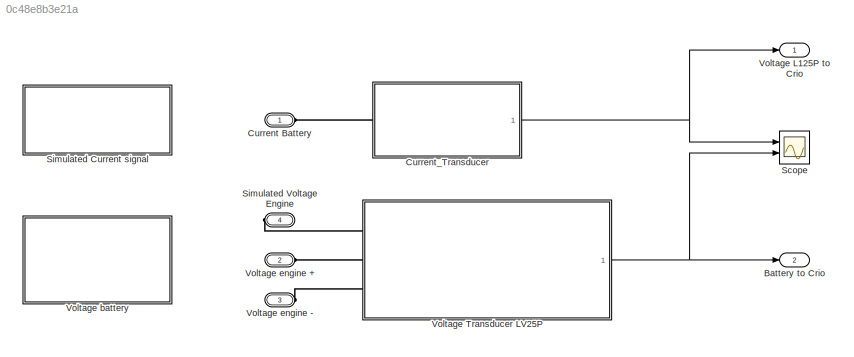
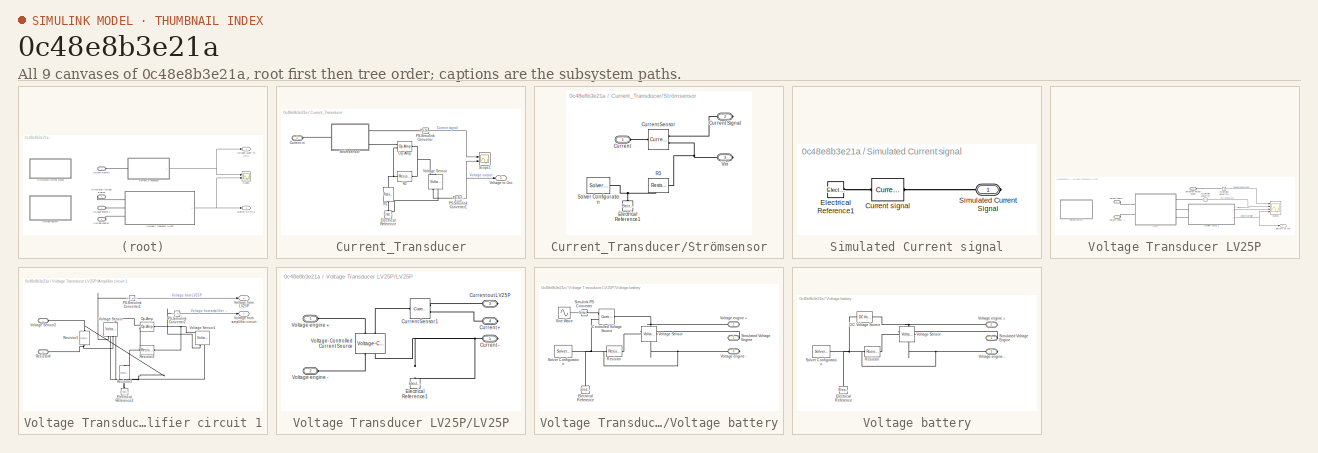
[diagram: thumbnail index - all 9 canvases of the model, root first then tree order]
MODEL slx_0c48e8b3e21a
KIND model
CONFIG AbsTol = auto
CONFIG EnableMultiTasking = off
CONFIG FixedStep = auto
CONFIG MaxStep = auto
CONFIG MinStep = auto
CONFIG RelTol = 1e-3
CONFIG SampleTimeConstraint = Unconstrained
CONFIG SolverName = VariableStepAuto
CONFIG StartTime = 0.0
CONFIG StopTime = 0.01
BLOCK [Outport] Battery to Crio
  Port = 2
BLOCK [PMIOPort] Current Battery
  Side = Left
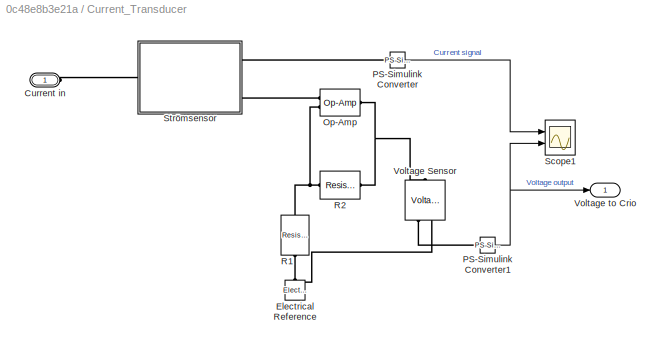
BLOCK [SubSystem] Current_Transducer
  Ports = [0, 1, 0, 0, 0, 1]
  RequestExecContextInheritance = off
BLOCK [PMIOPort] Current_Transducer/Current in
  Side = Left
BLOCK [Reference] Current_Transducer/Electrical Reference  REF=fl_lib/Electrical/Electrical Elements/Electrical Reference
  NameLocation = right
  Ports = [0, 0, 0, 0, 0, 1]
  SourceBlock = fl_lib/Electrical/Electrical Elements/Electrical Reference
  SourceProductBaseCode = SS
  SourceType = Electrical Reference
BLOCK [Reference] Current_Transducer/Op-Amp  REF=fl_lib/Electrical/Electrical Elements/Op-Amp
  Ports = [0, 0, 0, 0, 0, 2, 1]
  SourceBlock = fl_lib/Electrical/Electrical Elements/Op-Amp
  SourceProductBaseCode = SS
  SourceType = Op-Amp
BLOCK [Reference] Current_Transducer/PS-Simulink Converter  REF=nesl_utility/PS-Simulink
Converter
  Ports = [0, 1, 0, 0, 0, 1]
  SourceBlock = nesl_utility/PS-Simulink\nConverter
  SourceProductBaseCode = SS
  SourceType = PS-Simulink\nConverter
BLOCK [Reference] Current_Transducer/PS-Simulink Converter1  REF=nesl_utility/PS-Simulink
Converter
  Ports = [0, 1, 0, 0, 0, 1]
  SourceBlock = nesl_utility/PS-Simulink\nConverter
  SourceProductBaseCode = SS
  SourceType = PS-Simulink\nConverter
BLOCK [Reference] Current_Transducer/R1  REF=fl_lib/Electrical/Electrical Elements/Resistor
  NameLocation = left
  Ports = [0, 0, 0, 0, 0, 1, 1]
  SourceBlock = fl_lib/Electrical/Electrical Elements/Resistor
  SourceProductBaseCode = SS
  SourceType = Resistor
BLOCK [Reference] Current_Transducer/R2  REF=fl_lib/Electrical/Electrical Elements/Resistor
  Ports = [0, 0, 0, 0, 0, 1, 1]
  SourceBlock = fl_lib/Electrical/Electrical Elements/Resistor
  SourceProductBaseCode = SS
  SourceType = Resistor
BLOCK [Scope] Current_Transducer/Scope1
  Floating = off
  NumInputPorts = 2
  Ports = [2]
  ScopeSpecificationString = Simulink.scopes.TimeScopeBlockCfg('CurrentConfiguration', extmgr.ConfigurationSet(extmgr.Configuration('Core','General UI',true),extmgr.Configuration('Core','Source UI',true),extmgr.Configuration('Sources','WiredSimulink',true,'DataLoggingVariableName','ScopeData1'),extmgr.Configuration('Visuals','Time Domain',true,'SerializedDisplays',{struct('MinYLimReal','-0.24989','MaxYLimReal','0.24986','YLab...<+2096ch>
BLOCK [SubSystem] Current_Transducer/Strömsensor
  Ports = [0, 0, 0, 0, 0, 1, 2]
  RequestExecContextInheritance = off
BLOCK [PMIOPort] Current_Transducer/Strömsensor/Current
  Side = Left
BLOCK [Reference] Current_Transducer/Strömsensor/Current Sensor  REF=fl_lib/Electrical/Electrical Sensors/Current Sensor
  Ports = [0, 0, 0, 0, 0, 1, 2]
  SourceBlock = fl_lib/Electrical/Electrical Sensors/Current Sensor
  SourceProductBaseCode = SS
  SourceType = Current Sensor
BLOCK [PMIOPort] Current_Transducer/Strömsensor/Current Signal
  Port = 2
  Side = Right
BLOCK [Reference] Current_Transducer/Strömsensor/Electrical Reference1  REF=fl_lib/Electrical/Electrical Elements/Electrical Reference
  NameLocation = right
  Ports = [0, 0, 0, 0, 0, 1]
  SourceBlock = fl_lib/Electrical/Electrical Elements/Electrical Reference
  SourceProductBaseCode = SS
  SourceType = Electrical Reference
BLOCK [Reference] Current_Transducer/Strömsensor/R3  REF=fl_lib/Electrical/Electrical Elements/Resistor
  NameLocation = top
  Ports = [0, 0, 0, 0, 0, 1, 1]
  SourceBlock = fl_lib/Electrical/Electrical Elements/Resistor
  SourceProductBaseCode = SS
  SourceType = Resistor
BLOCK [Reference] Current_Transducer/Strömsensor/Solver Configuration  REF=nesl_utility/Solver
Configuration
  Ports = [0, 0, 0, 0, 0, 0, 1]
  SourceBlock = nesl_utility/Solver\nConfiguration
  SourceProductBaseCode = SS
  SourceType = Solver\nConfiguration
BLOCK [PMIOPort] Current_Transducer/Strömsensor/Vin
  Port = 3
  Side = Right
BLOCK [Reference] Current_Transducer/Voltage Sensor  REF=fl_lib/Electrical/Electrical Sensors/Voltage Sensor
  NameLocation = left
  Ports = [0, 0, 0, 0, 0, 1, 2]
  SourceBlock = fl_lib/Electrical/Electrical Sensors/Voltage Sensor
  SourceProductBaseCode = SS
  SourceType = Voltage Sensor
BLOCK [Outport] Current_Transducer/Voltage to Crio
BLOCK [Scope] Scope
  Floating = off
  NumInputPorts = 2
  Ports = [2]
  ScopeSpecificationString = Simulink.scopes.TimeScopeBlockCfg('CurrentConfiguration', extmgr.ConfigurationSet(extmgr.Configuration('Core','General UI',true),extmgr.Configuration('Core','Source UI',true),extmgr.Configuration('Sources','WiredSimulink',true,'DataLoggingVariableName','ScopeData1'),extmgr.Configuration('Visuals','Time Domain',true,'SerializedDisplays',{struct('MinYLimReal','6.85','MaxYLimReal','10.35','YLabelReal...<+1454ch>
BLOCK [SubSystem] Simulated Current signal
  Ports = [0, 0, 0, 0, 0, 0, 1]
  RequestExecContextInheritance = off
BLOCK [Reference] Simulated Current signal/Current signal  REF=ee_lib/Sources/Current Source
  Ports = [0, 0, 0, 0, 0, 1, 1]
  SourceBlock = ee_lib/Sources/Current Source
  SourceProductBaseCode = PS
  SourceType = Current Source
BLOCK [Reference] Simulated Current signal/Electrical Reference1  REF=fl_lib/Electrical/Electrical Elements/Electrical Reference
  Ports = [0, 0, 0, 0, 0, 1]
  SourceBlock = fl_lib/Electrical/Electrical Elements/Electrical Reference
  SourceProductBaseCode = SS
  SourceType = Electrical Reference
BLOCK [PMIOPort] Simulated Current signal/Simulated Current Signal
  Side = Right
BLOCK [PMIOPort] Simulated Voltage Engine
  Port = 4
  Side = Right
BLOCK [Outport] Voltage L125P to Crio 
BLOCK [SubSystem] Voltage Transducer LV25P
  Ports = [0, 1, 0, 0, 0, 3]
  RequestExecContextInheritance = off
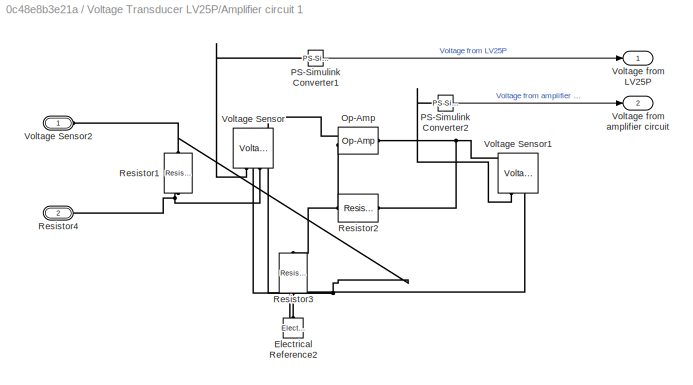
BLOCK [SubSystem] Voltage Transducer LV25P/Amplifier circuit 1
  Ports = [0, 2, 0, 0, 0, 2]
  RequestExecContextInheritance = off
BLOCK [Reference] Voltage Transducer LV25P/Amplifier circuit 1/Electrical Reference2  REF=fl_lib/Electrical/Electrical Elements/Electrical Reference
  NameLocation = right
  Ports = [0, 0, 0, 0, 0, 1]
  SourceBlock = fl_lib/Electrical/Electrical Elements/Electrical Reference
  SourceProductBaseCode = SS
  SourceType = Electrical Reference
BLOCK [Reference] Voltage Transducer LV25P/Amplifier circuit 1/Op-Amp  REF=fl_lib/Electrical/Electrical Elements/Op-Amp
  Ports = [0, 0, 0, 0, 0, 2, 1]
  SourceBlock = fl_lib/Electrical/Electrical Elements/Op-Amp
  SourceProductBaseCode = SS
  SourceType = Op-Amp
BLOCK [Reference] Voltage Transducer LV25P/Amplifier circuit 1/PS-Simulink Converter1  REF=nesl_utility/PS-Simulink
Converter
  Ports = [0, 1, 0, 0, 0, 1]
  SourceBlock = nesl_utility/PS-Simulink\nConverter
  SourceProductBaseCode = SS
  SourceType = PS-Simulink\nConverter
BLOCK [Reference] Voltage Transducer LV25P/Amplifier circuit 1/PS-Simulink Converter2  REF=nesl_utility/PS-Simulink
Converter
  Ports = [0, 1, 0, 0, 0, 1]
  SourceBlock = nesl_utility/PS-Simulink\nConverter
  SourceProductBaseCode = SS
  SourceType = PS-Simulink\nConverter
BLOCK [Reference] Voltage Transducer LV25P/Amplifier circuit 1/Resistor1  REF=fl_lib/Electrical/Electrical Elements/Resistor
  NameLocation = left
  Ports = [0, 0, 0, 0, 0, 1, 1]
  SourceBlock = fl_lib/Electrical/Electrical Elements/Resistor
  SourceProductBaseCode = SS
  SourceType = Resistor
BLOCK [Reference] Voltage Transducer LV25P/Amplifier circuit 1/Resistor2  REF=fl_lib/Electrical/Electrical Elements/Resistor
  Ports = [0, 0, 0, 0, 0, 1, 1]
  SourceBlock = fl_lib/Electrical/Electrical Elements/Resistor
  SourceProductBaseCode = SS
  SourceType = Resistor
BLOCK [Reference] Voltage Transducer LV25P/Amplifier circuit 1/Resistor3  REF=fl_lib/Electrical/Electrical Elements/Resistor
  NameLocation = left
  Ports = [0, 0, 0, 0, 0, 1, 1]
  SourceBlock = fl_lib/Electrical/Electrical Elements/Resistor
  SourceProductBaseCode = SS
  SourceType = Resistor
BLOCK [PMIOPort] Voltage Transducer LV25P/Amplifier circuit 1/Resistor4
  Port = 2
  Side = Left
BLOCK [Reference] Voltage Transducer LV25P/Amplifier circuit 1/Voltage Sensor  REF=fl_lib/Electrical/Electrical Sensors/Voltage Sensor
  NameLocation = right
  Ports = [0, 0, 0, 0, 0, 1, 2]
  SourceBlock = fl_lib/Electrical/Electrical Sensors/Voltage Sensor
  SourceProductBaseCode = SS
  SourceType = Voltage Sensor
BLOCK [Reference] Voltage Transducer LV25P/Amplifier circuit 1/Voltage Sensor1  REF=fl_lib/Electrical/Electrical Sensors/Voltage Sensor
  NameLocation = right
  Ports = [0, 0, 0, 0, 0, 1, 2]
  SourceBlock = fl_lib/Electrical/Electrical Sensors/Voltage Sensor
  SourceProductBaseCode = SS
  SourceType = Voltage Sensor
BLOCK [PMIOPort] Voltage Transducer LV25P/Amplifier circuit 1/Voltage Sensor2
  Side = Left
BLOCK [Outport] Voltage Transducer LV25P/Amplifier circuit 1/Voltage from LV25P
BLOCK [Outport] Voltage Transducer LV25P/Amplifier circuit 1/Voltage from amplifier circuit
  Port = 2
BLOCK [Outport] Voltage Transducer LV25P/Battery to Crio
BLOCK [SubSystem] Voltage Transducer LV25P/LV25P
  Ports = [0, 0, 0, 0, 0, 2, 3]
  RequestExecContextInheritance = off
BLOCK [PMIOPort] Voltage Transducer LV25P/LV25P/Current +
  Port = 4
  Side = Right
BLOCK [PMIOPort] Voltage Transducer LV25P/LV25P/Current -
  Port = 5
  Side = Right
BLOCK [Reference] Voltage Transducer LV25P/LV25P/Current Sensor1  REF=fl_lib/Electrical/Electrical Sensors/Current Sensor
  Ports = [0, 0, 0, 0, 0, 1, 2]
  SourceBlock = fl_lib/Electrical/Electrical Sensors/Current Sensor
  SourceProductBaseCode = SS
  SourceType = Current Sensor
BLOCK [PMIOPort] Voltage Transducer LV25P/LV25P/Current out LV25P
  Port = 3
  Side = Right
BLOCK [Reference] Voltage Transducer LV25P/LV25P/Electrical Reference1  REF=fl_lib/Electrical/Electrical Elements/Electrical Reference
  NameLocation = right
  Ports = [0, 0, 0, 0, 0, 1]
  SourceBlock = fl_lib/Electrical/Electrical Elements/Electrical Reference
  SourceProductBaseCode = SS
  SourceType = Electrical Reference
BLOCK [PMIOPort] Voltage Transducer LV25P/LV25P/Voltage engine +
  Side = Left
BLOCK [PMIOPort] Voltage Transducer LV25P/LV25P/Voltage engine -
  Port = 2
  Side = Left
BLOCK [Reference] Voltage Transducer LV25P/LV25P/Voltage-Controlled Current Source  REF=fl_lib/Electrical/Electrical Sources/Voltage-Controlled
Current Source
  NameLocation = right
  Ports = [0, 0, 0, 0, 0, 2, 2]
  SourceBlock = fl_lib/Electrical/Electrical Sources/Voltage-Controlled\nCurrent Source
  SourceProductBaseCode = SS
  SourceType = Voltage-Controlled\nCurrent Source
BLOCK [Reference] Voltage Transducer LV25P/PS-Simulink Converter  REF=nesl_utility/PS-Simulink
Converter
  Ports = [0, 1, 0, 0, 0, 1]
  SourceBlock = nesl_utility/PS-Simulink\nConverter
  SourceProductBaseCode = SS
  SourceType = PS-Simulink\nConverter
BLOCK [Reference] Voltage Transducer LV25P/PS-Simulink Converter1  REF=nesl_utility/PS-Simulink
Converter
  Ports = [0, 1, 0, 0, 0, 1]
  SourceBlock = nesl_utility/PS-Simulink\nConverter
  SourceProductBaseCode = SS
  SourceType = PS-Simulink\nConverter
BLOCK [Scope] Voltage Transducer LV25P/Scope1
  Floating = off
  NumInputPorts = 4
  Ports = [4]
  ScopeSpecificationString = Simulink.scopes.TimeScopeBlockCfg('CurrentConfiguration', extmgr.ConfigurationSet(extmgr.Configuration('Core','General UI',true),extmgr.Configuration('Core','Source UI',true),extmgr.Configuration('Sources','WiredSimulink',true,'DataLoggingVariableName','ScopeData4'),extmgr.Configuration('Visuals','Time Domain',true,'SerializedDisplays',{struct('MinYLimReal','-249.29185','MaxYLimReal','249.82656','...<+3803ch>
BLOCK [PMIOPort] Voltage Transducer LV25P/Simulated Voltage Engine
  Side = Left
BLOCK [SubSystem] Voltage Transducer LV25P/Voltage battery
  Ports = [0, 0, 0, 0, 0, 0, 3]
  RequestExecContextInheritance = off
BLOCK [Reference] Voltage Transducer LV25P/Voltage battery/Controlled Voltage Source  REF=fl_lib/Electrical/Electrical Sources/Controlled Voltage
Source
  Ports = [0, 0, 0, 0, 0, 1, 2]
  SourceBlock = fl_lib/Electrical/Electrical Sources/Controlled Voltage\nSource
  SourceProductBaseCode = SS
  SourceType = Controlled Voltage\nSource
BLOCK [Reference] Voltage Transducer LV25P/Voltage battery/Electrical Reference  REF=fl_lib/Electrical/Electrical Elements/Electrical Reference
  NameLocation = right
  Ports = [0, 0, 0, 0, 0, 1]
  SourceBlock = fl_lib/Electrical/Electrical Elements/Electrical Reference
  SourceProductBaseCode = SS
  SourceType = Electrical Reference
BLOCK [Reference] Voltage Transducer LV25P/Voltage battery/Resistor  REF=fl_lib/Electrical/Electrical Elements/Resistor
  Ports = [0, 0, 0, 0, 0, 1, 1]
  SourceBlock = fl_lib/Electrical/Electrical Elements/Resistor
  SourceProductBaseCode = SS
  SourceType = Resistor
BLOCK [PMIOPort] Voltage Transducer LV25P/Voltage battery/Simulated Voltage Engine
  Side = Right
BLOCK [Reference] Voltage Transducer LV25P/Voltage battery/Simulink-PS Converter  REF=nesl_utility/Simulink-PS
Converter
  Ports = [1, 0, 0, 0, 0, 0, 1]
  SourceBlock = nesl_utility/Simulink-PS\nConverter
  SourceProductBaseCode = SS
  SourceType = Simulink-PS\nConverter
BLOCK [Sin] Voltage Transducer LV25P/Voltage battery/Sine Wave
  Amplitude = 200
  Frequency = 200
  Ports = [0, 1]
  SampleTime = 0
BLOCK [Reference] Voltage Transducer LV25P/Voltage battery/Solver Configuration  REF=nesl_utility/Solver
Configuration
  Ports = [0, 0, 0, 0, 0, 0, 1]
  SourceBlock = nesl_utility/Solver\nConfiguration
  SourceProductBaseCode = SS
  SourceType = Solver\nConfiguration
BLOCK [Reference] Voltage Transducer LV25P/Voltage battery/Voltage Sensor  REF=fl_lib/Electrical/Electrical Sensors/Voltage Sensor
  NameLocation = top
  Ports = [0, 0, 0, 0, 0, 1, 2]
  SourceBlock = fl_lib/Electrical/Electrical Sensors/Voltage Sensor
  SourceProductBaseCode = SS
  SourceType = Voltage Sensor
BLOCK [PMIOPort] Voltage Transducer LV25P/Voltage battery/Voltage engine +
  Port = 2
  Side = Right
BLOCK [PMIOPort] Voltage Transducer LV25P/Voltage battery/Voltage engine -
  Port = 3
  Side = Right
BLOCK [PMIOPort] Voltage Transducer LV25P/Voltage engine +
  Port = 2
  Side = Left
BLOCK [PMIOPort] Voltage Transducer LV25P/Voltage engine -1
  Port = 3
  Side = Left
BLOCK [SubSystem] Voltage battery
  Ports = [0, 0, 0, 0, 0, 0, 3]
  RequestExecContextInheritance = off
BLOCK [Reference] Voltage battery/DC Voltage Source  REF=ee_lib/Additional
Components/SPICE Sources/DC Voltage Source
  Ports = [0, 0, 0, 0, 0, 1, 1]
  SourceBlock = ee_lib/Additional\nComponents/SPICE Sources/DC Voltage Source
  SourceProductBaseCode = PS
  SourceType = DC Voltage Source
BLOCK [Reference] Voltage battery/Electrical Reference  REF=fl_lib/Electrical/Electrical Elements/Electrical Reference
  NameLocation = right
  Ports = [0, 0, 0, 0, 0, 1]
  SourceBlock = fl_lib/Electrical/Electrical Elements/Electrical Reference
  SourceProductBaseCode = SS
  SourceType = Electrical Reference
BLOCK [Reference] Voltage battery/Resistor  REF=fl_lib/Electrical/Electrical Elements/Resistor
  Ports = [0, 0, 0, 0, 0, 1, 1]
  SourceBlock = fl_lib/Electrical/Electrical Elements/Resistor
  SourceProductBaseCode = SS
  SourceType = Resistor
BLOCK [PMIOPort] Voltage battery/Simulated Voltage Engine
  Side = Right
BLOCK [Reference] Voltage battery/Solver Configuration  REF=nesl_utility/Solver
Configuration
  Ports = [0, 0, 0, 0, 0, 0, 1]
  SourceBlock = nesl_utility/Solver\nConfiguration
  SourceProductBaseCode = SS
  SourceType = Solver\nConfiguration
BLOCK [Reference] Voltage battery/Voltage Sensor  REF=fl_lib/Electrical/Electrical Sensors/Voltage Sensor
  NameLocation = top
  Ports = [0, 0, 0, 0, 0, 1, 2]
  SourceBlock = fl_lib/Electrical/Electrical Sensors/Voltage Sensor
  SourceProductBaseCode = SS
  SourceType = Voltage Sensor
BLOCK [PMIOPort] Voltage battery/Voltage engine +
  Port = 2
  Side = Right
BLOCK [PMIOPort] Voltage battery/Voltage engine -
  Port = 3
  Side = Right
BLOCK [PMIOPort] Voltage engine +
  Port = 2
  Side = Left
BLOCK [PMIOPort] Voltage engine -
  Port = 3
  Side = Left
NET Current_Transducer/PS-Simulink Converter1:1 -> Current_Transducer/Scope1:2, Current_Transducer/Voltage to Crio:1
LINE Current_Transducer/PS-Simulink Converter:1 -> Current_Transducer/Scope1:1
NET Current_Transducer:1 -> Scope:1, Voltage L125P to Crio :1
LINE Voltage Transducer LV25P/Amplifier circuit 1/PS-Simulink Converter1:1 -> Voltage Transducer LV25P/Amplifier circuit 1/Voltage from LV25P:1
LINE Voltage Transducer LV25P/Amplifier circuit 1/PS-Simulink Converter2:1 -> Voltage Transducer LV25P/Amplifier circuit 1/Voltage from amplifier circuit:1
LINE Voltage Transducer LV25P/Amplifier circuit 1:1 -> Voltage Transducer LV25P/Scope1:3
NET Voltage Transducer LV25P/Amplifier circuit 1:2 -> Voltage Transducer LV25P/Battery to Crio:1, Voltage Transducer LV25P/Scope1:4
LINE Voltage Transducer LV25P/PS-Simulink Converter1:1 -> Voltage Transducer LV25P/Scope1:1
LINE Voltage Transducer LV25P/PS-Simulink Converter:1 -> Voltage Transducer LV25P/Scope1:2
LINE Voltage Transducer LV25P/Voltage battery/Sine Wave:1 -> Voltage Transducer LV25P/Voltage battery/Simulink-PS Converter:1
NET Voltage Transducer LV25P:1 -> Battery to Crio:1, Scope:2
PLINE Current Battery:RConn1 -- Current_Transducer:LConn1
PLINE Current_Transducer/Current in:RConn1 -- Current_Transducer/Strömsensor:LConn1
PNET net1: Current_Transducer/Electrical Reference:LConn1 -- Current_Transducer/R1:RConn1 -- Current_Transducer/Voltage Sensor:RConn2
PLINE Current_Transducer/Op-Amp:LConn1 -- Current_Transducer/Strömsensor:RConn2
PNET net2: Current_Transducer/Op-Amp:LConn2 -- Current_Transducer/R1:LConn1 -- Current_Transducer/R2:LConn1
PNET net3: Current_Transducer/Op-Amp:RConn1 -- Current_Transducer/R2:RConn1 -- Current_Transducer/Voltage Sensor:LConn1
PLINE Current_Transducer/PS-Simulink Converter1:LConn1 -- Current_Transducer/Voltage Sensor:RConn1
PLINE Current_Transducer/PS-Simulink Converter:LConn1 -- Current_Transducer/Strömsensor:RConn1
PLINE Current_Transducer/Strömsensor/Current Sensor:LConn1 -- Current_Transducer/Strömsensor/Current:RConn1
PLINE Current_Transducer/Strömsensor/Current Sensor:RConn1 -- Current_Transducer/Strömsensor/Current Signal:RConn1
PNET net4: Current_Transducer/Strömsensor/Current Sensor:RConn2 -- Current_Transducer/Strömsensor/R3:LConn1 -- Current_Transducer/Strömsensor/Vin:RConn1
PNET net5: Current_Transducer/Strömsensor/Electrical Reference1:LConn1 -- Current_Transducer/Strömsensor/R3:RConn1 -- Current_Transducer/Strömsensor/Solver Configuration:RConn1
PLINE Simulated Current signal/Current signal:LConn1 -- Simulated Current signal/Simulated Current Signal:RConn1
PLINE Simulated Current signal/Current signal:RConn1 -- Simulated Current signal/Electrical Reference1:LConn1
PLINE Simulated Voltage Engine:RConn1 -- Voltage Transducer LV25P:LConn1
PNET net6: Voltage Transducer LV25P/Amplifier circuit 1/Electrical Reference2:LConn1 -- Voltage Transducer LV25P/Amplifier circuit 1/Resistor3:RConn1 -- Voltage Transducer LV25P/Amplifier circuit 1/Voltage Sensor1:RConn2
PNET net7: Voltage Transducer LV25P/Amplifier circuit 1/Op-Amp:LConn1 -- Voltage Transducer LV25P/Amplifier circuit 1/Resistor1:LConn1 -- Voltage Transducer LV25P/Amplifier circuit 1/Voltage Sensor2:RConn1 -- Voltage Transducer LV25P/Amplifier circuit 1/Voltage Sensor:LConn1
PNET net8: Voltage Transducer LV25P/Amplifier circuit 1/Op-Amp:LConn2 -- Voltage Transducer LV25P/Amplifier circuit 1/Resistor2:LConn1 -- Voltage Transducer LV25P/Amplifier circuit 1/Resistor3:LConn1
PNET net9: Voltage Transducer LV25P/Amplifier circuit 1/Op-Amp:RConn1 -- Voltage Transducer LV25P/Amplifier circuit 1/Resistor2:RConn1 -- Voltage Transducer LV25P/Amplifier circuit 1/Voltage Sensor1:LConn1
PLINE Voltage Transducer LV25P/Amplifier circuit 1/PS-Simulink Converter1:LConn1 -- Voltage Transducer LV25P/Amplifier circuit 1/Voltage Sensor:RConn1
PLINE Voltage Transducer LV25P/Amplifier circuit 1/PS-Simulink Converter2:LConn1 -- Voltage Transducer LV25P/Amplifier circuit 1/Voltage Sensor1:RConn1
PNET net10: Voltage Transducer LV25P/Amplifier circuit 1/Resistor1:RConn1 -- Voltage Transducer LV25P/Amplifier circuit 1/Resistor4:RConn1 -- Voltage Transducer LV25P/Amplifier circuit 1/Voltage Sensor:RConn2
PLINE Voltage Transducer LV25P/Amplifier circuit 1:LConn1 -- Voltage Transducer LV25P/LV25P:RConn2
PLINE Voltage Transducer LV25P/Amplifier circuit 1:LConn2 -- Voltage Transducer LV25P/LV25P:RConn3
PLINE Voltage Transducer LV25P/LV25P/Current +:RConn1 -- Voltage Transducer LV25P/LV25P/Current Sensor1:RConn2
PNET net11: Voltage Transducer LV25P/LV25P/Current -:RConn1 -- Voltage Transducer LV25P/LV25P/Electrical Reference1:LConn1 -- Voltage Transducer LV25P/LV25P/Voltage-Controlled Current Source:RConn2
PLINE Voltage Transducer LV25P/LV25P/Current Sensor1:LConn1 -- Voltage Transducer LV25P/LV25P/Voltage-Controlled Current Source:LConn2
PLINE Voltage Transducer LV25P/LV25P/Current Sensor1:RConn1 -- Voltage Transducer LV25P/LV25P/Current out LV25P:RConn1
PLINE Voltage Transducer LV25P/LV25P/Voltage engine +:RConn1 -- Voltage Transducer LV25P/LV25P/Voltage-Controlled Current Source:LConn1
PLINE Voltage Transducer LV25P/LV25P/Voltage engine -:RConn1 -- Voltage Transducer LV25P/LV25P/Voltage-Controlled Current Source:RConn1
PLINE Voltage Transducer LV25P/LV25P:LConn1 -- Voltage Transducer LV25P/Voltage engine +:RConn1
PLINE Voltage Transducer LV25P/LV25P:LConn2 -- Voltage Transducer LV25P/Voltage engine -1:RConn1
PLINE Voltage Transducer LV25P/LV25P:RConn1 -- Voltage Transducer LV25P/PS-Simulink Converter:LConn1
PLINE Voltage Transducer LV25P/PS-Simulink Converter1:LConn1 -- Voltage Transducer LV25P/Simulated Voltage Engine:RConn1
PNET net12: Voltage Transducer LV25P/Voltage battery/Controlled Voltage Source:LConn1 -- Voltage Transducer LV25P/Voltage battery/Resistor:RConn1 -- Voltage Transducer LV25P/Voltage battery/Voltage Sensor:LConn1 -- Voltage Transducer LV25P/Voltage battery/Voltage engine +:RConn1
PLINE Voltage Transducer LV25P/Voltage battery/Controlled Voltage Source:RConn1 -- Voltage Transducer LV25P/Voltage battery/Simulink-PS Converter:RConn1
PNET net13: Voltage Transducer LV25P/Voltage battery/Controlled Voltage Source:RConn2 -- Voltage Transducer LV25P/Voltage battery/Electrical Reference:LConn1 -- Voltage Transducer LV25P/Voltage battery/Resistor:LConn1 -- Voltage Transducer LV25P/Voltage battery/Solver Configuration:RConn1 -- Voltage Transducer LV25P/Voltage battery/Voltage Sensor:RConn2 -- Voltage Transducer LV25P/Voltage battery/Voltage engine -:RConn1
PLINE Voltage Transducer LV25P/Voltage battery/Simulated Voltage Engine:RConn1 -- Voltage Transducer LV25P/Voltage battery/Voltage Sensor:RConn1
PLINE Voltage Transducer LV25P:LConn2 -- Voltage engine +:RConn1
PLINE Voltage Transducer LV25P:LConn3 -- Voltage engine -:RConn1
PNET net14: Voltage battery/DC Voltage Source:LConn1 -- Voltage battery/Resistor:RConn1 -- Voltage battery/Voltage Sensor:LConn1 -- Voltage battery/Voltage engine +:RConn1
PNET net15: Voltage battery/DC Voltage Source:RConn1 -- Voltage battery/Electrical Reference:LConn1 -- Voltage battery/Resistor:LConn1 -- Voltage battery/Solver Configuration:RConn1 -- Voltage battery/Voltage Sensor:RConn2 -- Voltage battery/Voltage engine -:RConn1
PLINE Voltage battery/Simulated Voltage Engine:RConn1 -- Voltage battery/Voltage Sensor:RConn1
note: NET lines group one-source signal fan-out (src -> all destinations, sorted); 1:1 wires keep LINE; PNET lines group multi-terminal physical nets as a canonical sorted terminal list (undirected conserving connections); 2-terminal nets keep the pairwise PLINE form
